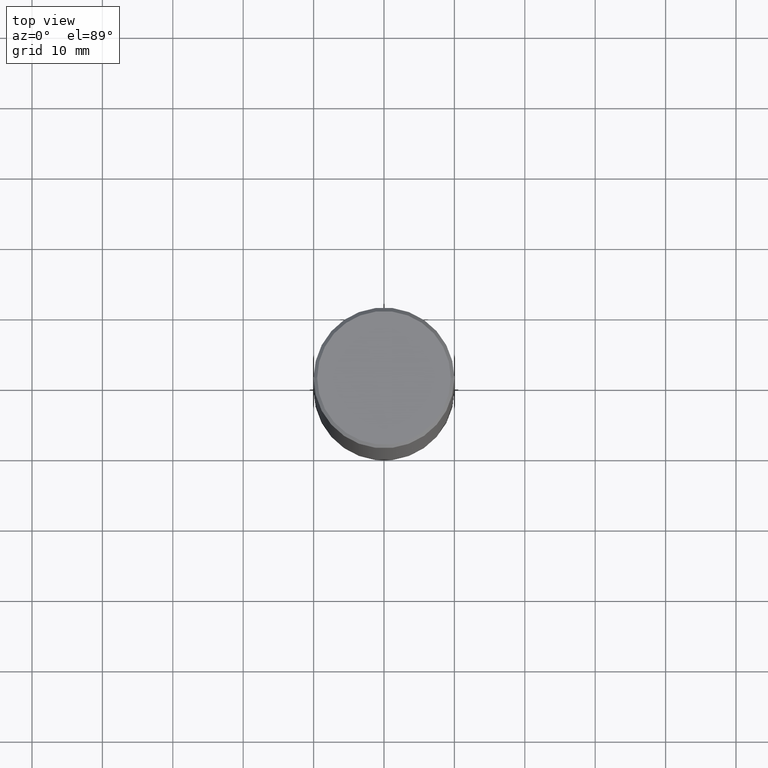
[diagram: clean part render]
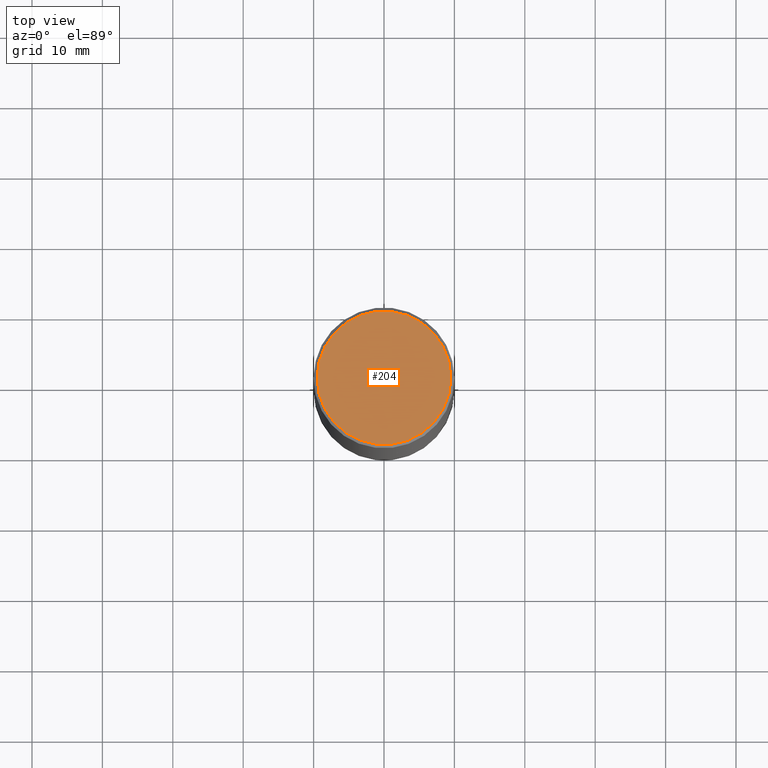
[diagram: same view with one face highlighted and labeled with its STEP entity id]
A machine part, top view. The second image highlights one B-rep face of the part: STEP entity #204.
In plain terms, the highlighted planar face has unit normal (0, -0, -1).
Its self-contained STEP definition (entity closure, byte-faithful):
#13 = CARTESIAN_POINT ( 'NONE',  ( -2.087702828670439639E-46, 2.980686340760894400E-32, 8.537024980200822558E-18 ) ) ;
#16 = CARTESIAN_POINT ( 'NONE',  ( -0.3736999999999997546, 2.644447966039787086E-15, 8.537024980182450727E-18 ) ) ;
#24 = CARTESIAN_POINT ( 'NONE',  ( 2.609533152651355831E-15, 0.3736999999999997546, -1.300498063835582419E-15 ) ) ;
#52 = EDGE_LOOP ( 'NONE', ( #222, #306 ) ) ;
#65 = VERTEX_POINT ( 'NONE', #109 ) ;
#89 = DIRECTION ( 'NONE',  ( 1.000000000000000000, -6.982962677686266711E-15, 4.876212485538978481E-29 ) ) ;
#109 = CARTESIAN_POINT ( 'NONE',  ( 0.3736999999999997546, -2.667287895133366781E-15, 8.537024980219274507E-18 ) ) ;
#120 = FACE_OUTER_BOUND ( 'NONE', #52, .T. ) ;
#123 = DIRECTION ( 'NONE',  ( -2.445468806185136597E-29, 3.491481338843145583E-15, 1.000000000000000000 ) ) ;
#129 = DIRECTION ( 'NONE',  ( 1.000000000000000000, -6.982962677686266711E-15, 4.876212485538978481E-29 ) ) ;
#149 = DIRECTION ( 'NONE',  ( -2.445468806185136597E-29, 3.491481338843145583E-15, 1.000000000000000000 ) ) ;
#180 = PLANE ( 'NONE',  #342 ) ;
#185 = AXIS2_PLACEMENT_3D ( 'NONE', #13, #149, #89 ) ;
#194 = VERTEX_POINT ( 'NONE', #16 ) ;
#204 = ADVANCED_FACE ( 'NONE', ( #120 ), #180, .F. ) ;
#215 = CARTESIAN_POINT ( 'NONE',  ( -2.087702828670439639E-46, 2.980686340760894400E-32, 8.537024980200822558E-18 ) ) ;
#216 = DIRECTION ( 'NONE',  ( 2.438088387897960049E-29, -3.491481338843145188E-15, -1.000000000000000000 ) ) ;
#222 = ORIENTED_EDGE ( 'NONE', *, *, #241, .T. ) ;
#241 = EDGE_CURVE ( 'NONE', #194, #65, #244, .T. ) ;
#244 = CIRCLE ( 'NONE', #345, 0.3736999999999997546 ) ;
#293 = CIRCLE ( 'NONE', #185, 0.3736999999999997546 ) ;
#306 = ORIENTED_EDGE ( 'NONE', *, *, #366, .T. ) ;
#331 = DIRECTION ( 'NONE',  ( -1.000000000000000000, 6.982962677686265922E-15, -4.876176775795935793E-29 ) ) ;
#342 = AXIS2_PLACEMENT_3D ( 'NONE', #24, #216, #331 ) ;
#345 = AXIS2_PLACEMENT_3D ( 'NONE', #215, #123, #129 ) ;
#366 = EDGE_CURVE ( 'NONE', #65, #194, #293, .T. ) ;